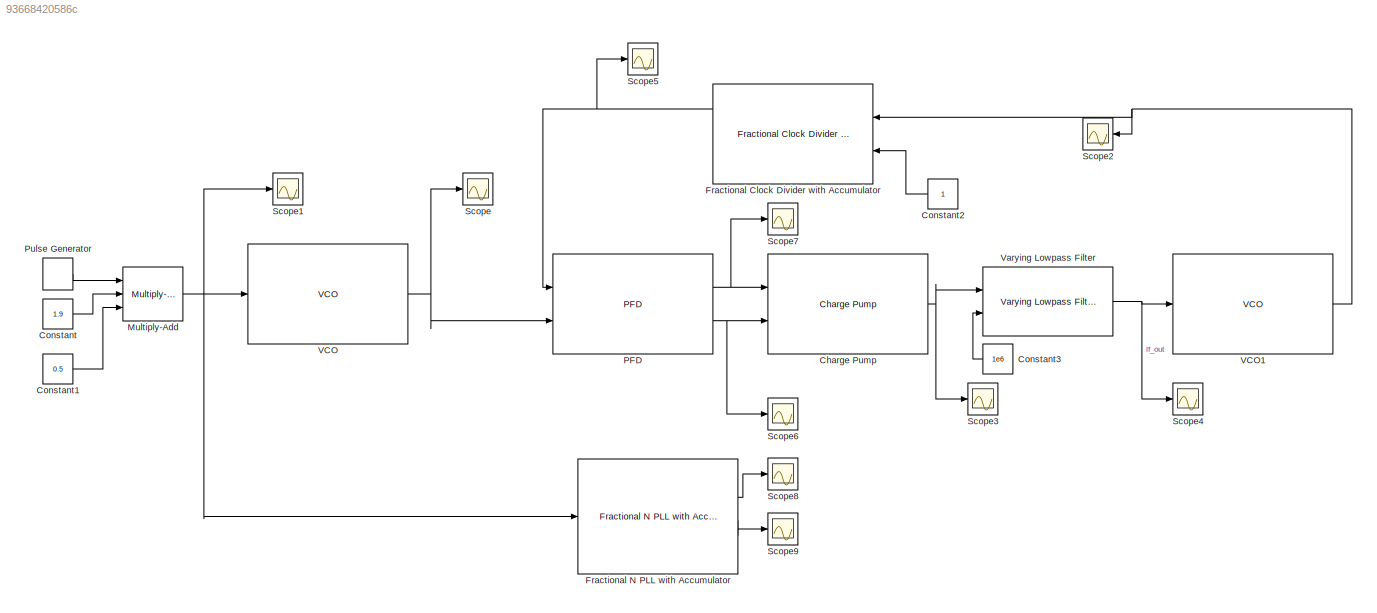
MODEL slx_93668420586c
KIND model
CONFIG AbsTol = auto
CONFIG EnableMultiTasking = off
CONFIG FixedStep = auto
CONFIG MaxStep = auto
CONFIG MinStep = auto
CONFIG RelTol = 1e-3
CONFIG SampleTimeConstraint = Unconstrained
CONFIG SolverName = VariableStepAuto
CONFIG StartTime = 0.0
CONFIG StopTime = 0.000005
BLOCK [Reference] Charge Pump  REF=msbPllFoundation/Charge Pump
  Ports = [2, 1]
  SourceBlock = msbPllFoundation/Charge Pump
  SourceProductBaseCode = AM
  SourceType = ChargePump
BLOCK [Constant] Constant
  Value = 1.9
BLOCK [Constant] Constant1
  Value = 0.5
BLOCK [Constant] Constant2
BLOCK [Constant] Constant3
  Value = 1e6
BLOCK [Reference] Fractional Clock Divider with Accumulator  REF=msbPllFoundation/Fractional Clock Divider with Accumulator
  Ports = [2, 3]
  SourceBlock = msbPllFoundation/Fractional Clock Divider with Accumulator
  SourceProductBaseCode = AM
  SourceType = FractionalClockDividerWithAccumulator
BLOCK [Reference] Fractional N PLL with Accumulator  REF=msbPllArchitectures/Fractional N PLL with Accumulator
  Ports = [1, 2]
  SourceBlock = msbPllArchitectures/Fractional N PLL with Accumulator
  SourceProductBaseCode = AM
  SourceType = FractionalNPLLwithAccumulator
BLOCK [Reference] Multiply-Add  REF=hdlsllib/HDL Operations/Multiply-Add
  Ports = [3, 1]
  SourceBlock = hdlsllib/HDL Operations/Multiply-Add
  SourceProductBaseCode = SL
  SourceType = Multiply-Add
BLOCK [Reference] PFD  REF=msbPllFoundation/PFD
  Ports = [2, 2]
  SourceBlock = msbPllFoundation/PFD
  SourceProductBaseCode = AM
  SourceType = PhaseFrequencyDetector
BLOCK [DiscretePulseGenerator] Pulse Generator
  Period = 3e-8
  Ports = [0, 1]
  PulseType = Time based
  PulseWidth = 50
BLOCK [Scope] Scope
  Floating = off
  NumInputPorts = 1
  Ports = [1]
  ScopeSpecificationString = Simulink.scopes.TimeScopeBlockCfg('CurrentConfiguration', extmgr.ConfigurationSet(extmgr.Configuration('Core','General UI',true),extmgr.Configuration('Core','Source UI',true),extmgr.Configuration('Sources','WiredSimulink',true),extmgr.Configuration('Visuals','Time Domain',true,'SerializedDisplays',{struct('MinYLimReal','-0.125','MaxYLimReal','1.125','YLabelReal','','MinYLimMag','0.00000','MaxYLimM...<+1365ch>
BLOCK [Scope] Scope1
  Floating = off
  NumInputPorts = 1
  Ports = [1]
  ScopeSpecificationString = Simulink.scopes.TimeScopeBlockCfg('CurrentConfiguration', extmgr.ConfigurationSet(extmgr.Configuration('Core','General UI',true),extmgr.Configuration('Core','Source UI',true),extmgr.Configuration('Sources','WiredSimulink',true,'DataLoggingVariableName','ScopeData1'),extmgr.Configuration('Visuals','Time Domain',true,'SerializedDisplays',{struct('MinYLimReal','0.2625','MaxYLimReal','2.6375','YLabelR...<+1432ch>
BLOCK [Scope] Scope2
  Floating = off
  NumInputPorts = 1
  Ports = [1]
  ScopeSpecificationString = Simulink.scopes.TimeScopeBlockCfg('CurrentConfiguration', extmgr.ConfigurationSet(extmgr.Configuration('Core','General UI',true),extmgr.Configuration('Core','Source UI',true),extmgr.Configuration('Sources','WiredSimulink',true,'DataLoggingVariableName','ScopeData2'),extmgr.Configuration('Visuals','Time Domain',true,'SerializedDisplays',{struct('MinYLimReal','-0.125','MaxYLimReal','1.125','YLabelRe...<+1406ch>
BLOCK [Scope] Scope3
  Floating = off
  NumInputPorts = 1
  Ports = [1]
  ScopeSpecificationString = Simulink.scopes.TimeScopeBlockCfg('CurrentConfiguration', extmgr.ConfigurationSet(extmgr.Configuration('Core','General UI',true),extmgr.Configuration('Core','Source UI',true),extmgr.Configuration('Sources','WiredSimulink',true,'DataLoggingVariableName','ScopeData1'),extmgr.Configuration('Visuals','Time Domain',true,'SerializedDisplays',{struct('MinYLimReal','-0.00113','MaxYLimReal','0.00012','YLab...<+1448ch>
BLOCK [Scope] Scope4
  Floating = off
  NumInputPorts = 1
  Ports = [1]
  ScopeSpecificationString = Simulink.scopes.TimeScopeBlockCfg('CurrentConfiguration', extmgr.ConfigurationSet(extmgr.Configuration('Core','General UI',true),extmgr.Configuration('Core','Source UI',true),extmgr.Configuration('Sources','WiredSimulink',true,'DataLoggingVariableName','ScopeData2'),extmgr.Configuration('Visuals','Time Domain',true,'SerializedDisplays',{struct('MinYLimReal','-0.00058','MaxYLimReal','0.00006','YLab...<+1421ch>
BLOCK [Scope] Scope5
  Floating = off
  NumInputPorts = 1
  Ports = [1]
  ScopeSpecificationString = Simulink.scopes.TimeScopeBlockCfg('CurrentConfiguration', extmgr.ConfigurationSet(extmgr.Configuration('Core','General UI',true),extmgr.Configuration('Core','Source UI',true),extmgr.Configuration('Sources','WiredSimulink',true,'DataLoggingVariableName','ScopeData3'),extmgr.Configuration('Visuals','Time Domain',true,'SerializedDisplays',{struct('MinYLimReal','-0.125','MaxYLimReal','1.125','YLabelRe...<+1446ch>
BLOCK [Scope] Scope6
  Floating = off
  NumInputPorts = 1
  Ports = [1]
  ScopeSpecificationString = Simulink.scopes.TimeScopeBlockCfg('CurrentConfiguration', extmgr.ConfigurationSet(extmgr.Configuration('Core','General UI',true),extmgr.Configuration('Core','Source UI',true),extmgr.Configuration('Sources','WiredSimulink',true,'DataLoggingVariableName','ScopeData4'),extmgr.Configuration('Visuals','Time Domain',true,'SerializedDisplays',{struct('MinYLimReal','-0.125','MaxYLimReal','1.125','YLabelRe...<+1408ch>
BLOCK [Scope] Scope7
  Floating = off
  NumInputPorts = 1
  Ports = [1]
  ScopeSpecificationString = Simulink.scopes.TimeScopeBlockCfg('CurrentConfiguration', extmgr.ConfigurationSet(extmgr.Configuration('Core','General UI',true),extmgr.Configuration('Core','Source UI',true),extmgr.Configuration('Sources','WiredSimulink',true,'DataLoggingVariableName','ScopeData5'),extmgr.Configuration('Visuals','Time Domain',true,'SerializedDisplays',{struct('MinYLimReal','-0.125','MaxYLimReal','1.125','YLabelRe...<+1408ch>
BLOCK [Scope] Scope8
  Floating = off
  NumInputPorts = 1
  Ports = [1]
  ScopeSpecificationString = Simulink.scopes.TimeScopeBlockCfg('CurrentConfiguration', extmgr.ConfigurationSet(extmgr.Configuration('Core','General UI',true),extmgr.Configuration('Core','Source UI',true),extmgr.Configuration('Sources','WiredSimulink',true,'DataLoggingVariableName','ScopeData6'),extmgr.Configuration('Visuals','Time Domain',true,'SerializedDisplays',{struct('MinYLimReal','-0.125','MaxYLimReal','1.125','YLabelRe...<+1438ch>
BLOCK [Scope] Scope9
  Floating = off
  NumInputPorts = 1
  Ports = [1]
  ScopeSpecificationString = Simulink.scopes.TimeScopeBlockCfg('CurrentConfiguration', extmgr.ConfigurationSet(extmgr.Configuration('Core','General UI',true),extmgr.Configuration('Core','Source UI',true),extmgr.Configuration('Sources','WiredSimulink',true,'DataLoggingVariableName','ScopeData7'),extmgr.Configuration('Visuals','Time Domain',true,'SerializedDisplays',{struct('MinYLimReal','-17.50395','MaxYLimReal','1.94488','YLa...<+1459ch>
BLOCK [Reference] VCO  REF=msbPllFoundation/VCO
  Ports = [1, 1]
  SourceBlock = msbPllFoundation/VCO
  SourceProductBaseCode = AM
  SourceType = VCO
BLOCK [Reference] VCO1  REF=msbPllFoundation/VCO
  Ports = [1, 1]
  SourceBlock = msbPllFoundation/VCO
  SourceProductBaseCode = AM
  SourceType = VCO
BLOCK [Reference] Varying Lowpass Filter  REF=cstblocks/Linear Parameter Varying/Varying Lowpass Filter
  Ports = [2, 1]
  SourceBlock = cstblocks/Linear Parameter Varying/Varying Lowpass Filter
  SourceProductBaseCode = CT
  SourceType = Varying Lowpass Filter
NET Charge Pump:1 -> Scope3:1, Varying Lowpass Filter:1
LINE Constant1:1 -> Multiply-Add:3
LINE Constant2:1 -> Fractional Clock Divider with Accumulator:2
LINE Constant3:1 -> Varying Lowpass Filter:2
LINE Constant:1 -> Multiply-Add:2
NET Fractional Clock Divider with Accumulator:1 -> PFD:1, Scope5:1
LINE Fractional N PLL with Accumulator:1 -> Scope8:1
LINE Fractional N PLL with Accumulator:2 -> Scope9:1
NET Multiply-Add:1 -> Fractional N PLL with Accumulator:1, Scope1:1, VCO:1
NET PFD:1 -> Charge Pump:1, Scope7:1
NET PFD:2 -> Charge Pump:2, Scope6:1
LINE Pulse Generator:1 -> Multiply-Add:1
NET VCO1:1 -> Fractional Clock Divider with Accumulator:1, Scope2:1
NET VCO:1 -> PFD:2, Scope:1
NET Varying Lowpass Filter:1 -> Scope4:1, VCO1:1
note: NET lines group one-source signal fan-out (src -> all destinations, sorted); 1:1 wires keep LINE
